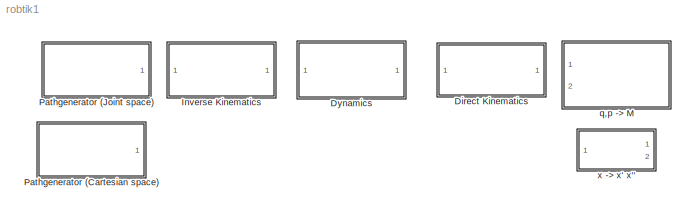
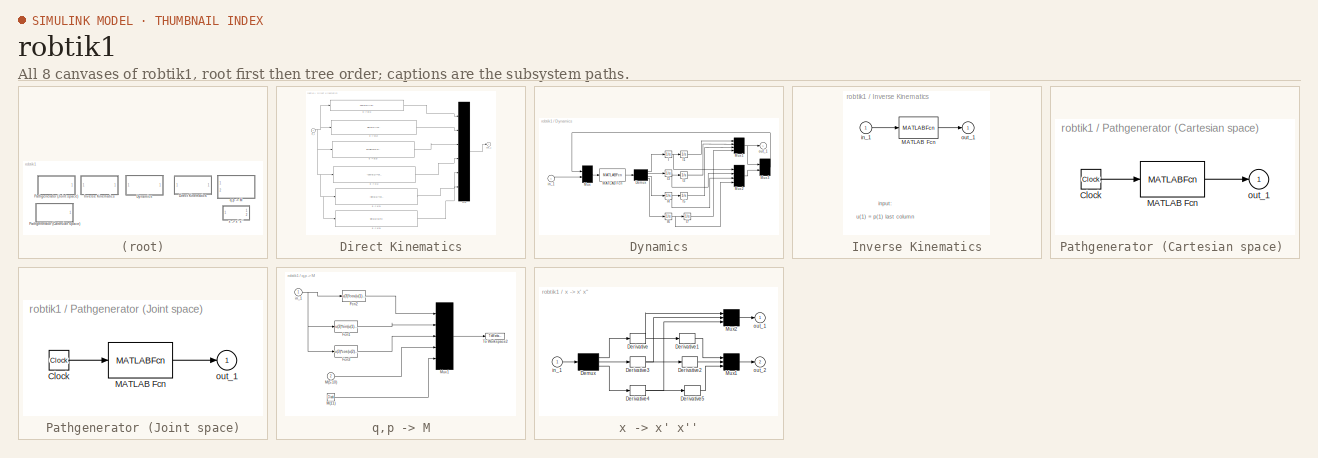
[diagram: thumbnail index - all 8 canvases of the model, root first then tree order]
MODEL robtik1
KIND model
BLOCK [SubSystem] Direct Kinematics
  Ports = [1, 1]
  RequestExecContextInheritance = off
  SID = 1
  ShowPortLabels = none
  Variant = off
BLOCK [Mux] Direct Kinematics/Mux
  Inputs = 6
  Ports = [6, 1]
  SID = 3
BLOCK [Inport] Direct Kinematics/in_1
  IconDisplay = Port number
  SID = 2
BLOCK [Outport] Direct Kinematics/out_1
  IconDisplay = Port number
  InitialOutput = 0
  SID = 10
BLOCK [Fcn] Direct Kinematics/q -> p(1)
  Expr = cos(u[1])*(sin(u[2])*u[3]-a4*cos(u[2]+u[4]) )
  SID = 4
BLOCK [Fcn] Direct Kinematics/q -> p(2)
  Expr = sin(u[1])*(sin(u[2])*u[3]-a4*cos(u[2]+u[4]))
  SID = 5
BLOCK [Fcn] Direct Kinematics/q -> p(3)
  Expr = a4*sin(u[2]+u[4]) + cos(u[2])*u[3]+d1
  SID = 6
BLOCK [Fcn] Direct Kinematics/q -> x(1)
  Expr = -cos(u[1])*cos(u[2]+u[4])
  SID = 7
BLOCK [Fcn] Direct Kinematics/q -> x(2)
  Expr = -sin(u[1])*cos(u[2]+u[4])
  SID = 8
BLOCK [Fcn] Direct Kinematics/q -> x(3)
  Expr = sin(u[2]+u[4])
  SID = 9
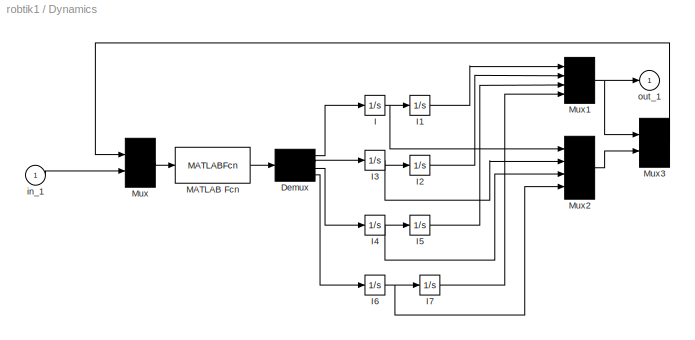
BLOCK [SubSystem] Dynamics
  Ports = [1, 1]
  RequestExecContextInheritance = off
  SID = 11
  ShowPortLabels = none
  Variant = off
BLOCK [Demux] Dynamics/Demux
  Ports = [1, 4]
  SID = 13
BLOCK [Integrator] Dynamics/I
  Ports = [1, 1]
  SID = 14
BLOCK [Integrator] Dynamics/I1
  Ports = [1, 1]
  SID = 15
BLOCK [Integrator] Dynamics/I2
  Ports = [1, 1]
  SID = 16
BLOCK [Integrator] Dynamics/I3
  Ports = [1, 1]
  SID = 17
BLOCK [Integrator] Dynamics/I4
  Ports = [1, 1]
  SID = 18
BLOCK [Integrator] Dynamics/I5
  Ports = [1, 1]
  SID = 19
BLOCK [Integrator] Dynamics/I6
  Ports = [1, 1]
  SID = 20
BLOCK [Integrator] Dynamics/I7
  Ports = [1, 1]
  SID = 21
BLOCK [MATLABFcn] Dynamics/MATLAB Fcn
  MATLABFcn = id4link
  OutputDimensions = 4
  Ports = [1, 1]
  SID = 22
BLOCK [Mux] Dynamics/Mux
  Inputs = [8 4]
  Ports = [2, 1]
  SID = 23
BLOCK [Mux] Dynamics/Mux1
  Ports = [4, 1]
  SID = 24
BLOCK [Mux] Dynamics/Mux2
  Ports = [4, 1]
  SID = 25
BLOCK [Mux] Dynamics/Mux3
  Inputs = [4 4]
  Ports = [2, 1]
  SID = 26
BLOCK [Inport] Dynamics/in_1
  IconDisplay = Port number
  SID = 12
BLOCK [Outport] Dynamics/out_1
  IconDisplay = Port number
  SID = 27
BLOCK [SubSystem] Inverse Kinematics
  Ports = [1, 1]
  RequestExecContextInheritance = off
  SID = 84
  ShowPortLabels = none
  Variant = off
BLOCK [MATLABFcn] Inverse Kinematics/MATLAB Fcn
  MATLABFcn = inverse_kinematics
  OutputDimensions = 4
  Ports = [1, 1]
  SID = 86
BLOCK [Inport] Inverse Kinematics/in_1
  IconDisplay = Port number
  SID = 88
BLOCK [Outport] Inverse Kinematics/out_1
  IconDisplay = Port number
  SID = 87
BLOCK [SubSystem] Pathgenerator (Cartesian space) 
  Ports = [0, 1]
  RequestExecContextInheritance = off
  SID = 39
  ShowPortLabels = none
  Variant = off
BLOCK [Clock] Pathgenerator (Cartesian space) /Clock
  SID = 40
BLOCK [MATLABFcn] Pathgenerator (Cartesian space) /MATLAB Fcn
  MATLABFcn = C_path
  OutputDimensions = 6
  Ports = [1, 1]
  SID = 41
BLOCK [Outport] Pathgenerator (Cartesian space) /out_1
  IconDisplay = Port number
  SID = 42
BLOCK [SubSystem] Pathgenerator (Joint space)
  Ports = [0, 1]
  RequestExecContextInheritance = off
  SID = 43
  ShowPortLabels = none
  Variant = off
BLOCK [Clock] Pathgenerator (Joint space)/Clock
  SID = 44
BLOCK [MATLABFcn] Pathgenerator (Joint space)/MATLAB Fcn
  MATLABFcn = J_path
  OutputDimensions = 4
  Ports = [1, 1]
  SID = 45
BLOCK [Outport] Pathgenerator (Joint space)/out_1
  IconDisplay = Port number
  SID = 46
BLOCK [SubSystem] q,p -> M
  Ports = [2]
  RequestExecContextInheritance = off
  SID = 47
  ShowPortLabels = none
  Variant = off
BLOCK [Fcn] q,p -> M/Fcn1
  Expr = u(3)*sin(u(1))*sin(u(2))
  SID = 50
BLOCK [Fcn] q,p -> M/Fcn2
  Expr = u(3)*cos(u(1))*sin(u(2))
  SID = 51
BLOCK [Fcn] q,p -> M/Fcn3
  Expr = u(3)*cos(u(2)) +d1
  SID = 52
BLOCK [Clock] q,p -> M/M(11)
  SID = 53
BLOCK [Inport] q,p -> M/M(5-10)
  IconDisplay = Port number
  Port = 2
  SID = 49
BLOCK [Mux] q,p -> M/Mux1
  Inputs = [1 1 1 6 1]
  Ports = [5, 1]
  SID = 54
BLOCK [ToWorkspace] q,p -> M/To Workspace2
  MaxDataPoints = 100000
  Ports = [1]
  SID = 55
  VariableName = M
BLOCK [Inport] q,p -> M/in_1
  IconDisplay = Port number
  SID = 48
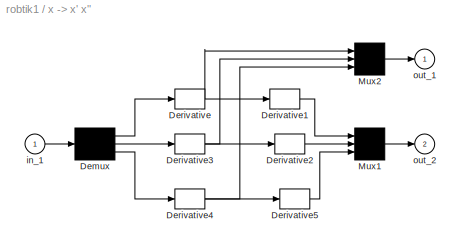
BLOCK [SubSystem] x -> x' x''
  Ports = [1, 2]
  RequestExecContextInheritance = off
  SID = 56
  ShowPortLabels = none
  Variant = off
BLOCK [Demux] x -> x' x''/Demux
  Outputs = 3
  Ports = [1, 3]
  SID = 58
BLOCK [Derivative] x -> x' x''/Derivative
  SID = 59
BLOCK [Derivative] x -> x' x''/Derivative1
  SID = 60
BLOCK [Derivative] x -> x' x''/Derivative2
  SID = 61
BLOCK [Derivative] x -> x' x''/Derivative3
  SID = 62
BLOCK [Derivative] x -> x' x''/Derivative4
  SID = 63
BLOCK [Derivative] x -> x' x''/Derivative5
  SID = 64
BLOCK [Mux] x -> x' x''/Mux1
  Inputs = 3
  Ports = [3, 1]
  SID = 65
BLOCK [Mux] x -> x' x''/Mux2
  Inputs = 3
  Ports = [3, 1]
  SID = 66
BLOCK [Inport] x -> x' x''/in_1
  IconDisplay = Port number
  SID = 57
BLOCK [Outport] x -> x' x''/out_1
  IconDisplay = Port number
  SID = 67
BLOCK [Outport] x -> x' x''/out_2
  IconDisplay = Port number
  Port = 2
  SID = 68
ANNOTATION Inverse Kinematics: \n \n input: \n u(1) = p(1) last column \n u(2) = p(2) \n u(3) = p(3) \n u(4) = x(1) first column \n u(5) = x(2) \n u(6) = x(3)
LINE Direct Kinematics/Mux:1 -> Direct Kinematics/out_1:1
NET Direct Kinematics/in_1:1 -> Direct Kinematics/q -> p(1):1, Direct Kinematics/q -> p(2):1, Direct Kinematics/q -> p(3):1, Direct Kinematics/q -> x(1):1, Direct Kinematics/q -> x(2):1, Direct Kinematics/q -> x(3):1
LINE Direct Kinematics/q -> p(1):1 -> Direct Kinematics/Mux:1
LINE Direct Kinematics/q -> p(2):1 -> Direct Kinematics/Mux:2
LINE Direct Kinematics/q -> p(3):1 -> Direct Kinematics/Mux:3
LINE Direct Kinematics/q -> x(1):1 -> Direct Kinematics/Mux:4
LINE Direct Kinematics/q -> x(2):1 -> Direct Kinematics/Mux:5
LINE Direct Kinematics/q -> x(3):1 -> Direct Kinematics/Mux:6
LINE Dynamics/Demux:1 -> Dynamics/I:1
LINE Dynamics/Demux:2 -> Dynamics/I3:1
LINE Dynamics/Demux:3 -> Dynamics/I4:1
LINE Dynamics/Demux:4 -> Dynamics/I6:1
LINE Dynamics/I1:1 -> Dynamics/Mux1:1
LINE Dynamics/I2:1 -> Dynamics/Mux1:2
NET Dynamics/I3:1 -> Dynamics/I2:1, Dynamics/Mux2:2
NET Dynamics/I4:1 -> Dynamics/I5:1, Dynamics/Mux2:3
LINE Dynamics/I5:1 -> Dynamics/Mux1:3
NET Dynamics/I6:1 -> Dynamics/I7:1, Dynamics/Mux2:4
LINE Dynamics/I7:1 -> Dynamics/Mux1:4
NET Dynamics/I:1 -> Dynamics/I1:1, Dynamics/Mux2:1
LINE Dynamics/MATLAB Fcn:1 -> Dynamics/Demux:1
NET Dynamics/Mux1:1 -> Dynamics/Mux3:1, Dynamics/out_1:1
LINE Dynamics/Mux2:1 -> Dynamics/Mux3:2
LINE Dynamics/Mux3:1 -> Dynamics/Mux:1
LINE Dynamics/Mux:1 -> Dynamics/MATLAB Fcn:1
LINE Dynamics/in_1:1 -> Dynamics/Mux:2
LINE Inverse Kinematics/MATLAB Fcn:1 -> Inverse Kinematics/out_1:1
LINE Inverse Kinematics/in_1:1 -> Inverse Kinematics/MATLAB Fcn:1
LINE Pathgenerator (Cartesian space) /Clock:1 -> Pathgenerator (Cartesian space) /MATLAB Fcn:1
LINE Pathgenerator (Cartesian space) /MATLAB Fcn:1 -> Pathgenerator (Cartesian space) /out_1:1
LINE Pathgenerator (Joint space)/Clock:1 -> Pathgenerator (Joint space)/MATLAB Fcn:1
LINE Pathgenerator (Joint space)/MATLAB Fcn:1 -> Pathgenerator (Joint space)/out_1:1
LINE q,p -> M/Fcn1:1 -> q,p -> M/Mux1:2
LINE q,p -> M/Fcn2:1 -> q,p -> M/Mux1:1
LINE q,p -> M/Fcn3:1 -> q,p -> M/Mux1:3
LINE q,p -> M/M(11):1 -> q,p -> M/Mux1:5
LINE q,p -> M/M(5-10):1 -> q,p -> M/Mux1:4
LINE q,p -> M/Mux1:1 -> q,p -> M/To Workspace2:1
NET q,p -> M/in_1:1 -> q,p -> M/Fcn1:1, q,p -> M/Fcn2:1, q,p -> M/Fcn3:1
LINE x -> x' x''/Demux:1 -> x -> x' x''/Derivative:1
LINE x -> x' x''/Demux:2 -> x -> x' x''/Derivative3:1
LINE x -> x' x''/Demux:3 -> x -> x' x''/Derivative4:1
LINE x -> x' x''/Derivative1:1 -> x -> x' x''/Mux1:1
LINE x -> x' x''/Derivative2:1 -> x -> x' x''/Mux1:2
NET x -> x' x''/Derivative3:1 -> x -> x' x''/Derivative2:1, x -> x' x''/Mux2:2
NET x -> x' x''/Derivative4:1 -> x -> x' x''/Derivative5:1, x -> x' x''/Mux2:3
LINE x -> x' x''/Derivative5:1 -> x -> x' x''/Mux1:3
NET x -> x' x''/Derivative:1 -> x -> x' x''/Derivative1:1, x -> x' x''/Mux2:1
LINE x -> x' x''/Mux1:1 -> x -> x' x''/out_2:1
LINE x -> x' x''/Mux2:1 -> x -> x' x''/out_1:1
LINE x -> x' x''/in_1:1 -> x -> x' x''/Demux:1
note: NET lines group one-source signal fan-out (src -> all destinations, sorted); 1:1 wires keep LINE
